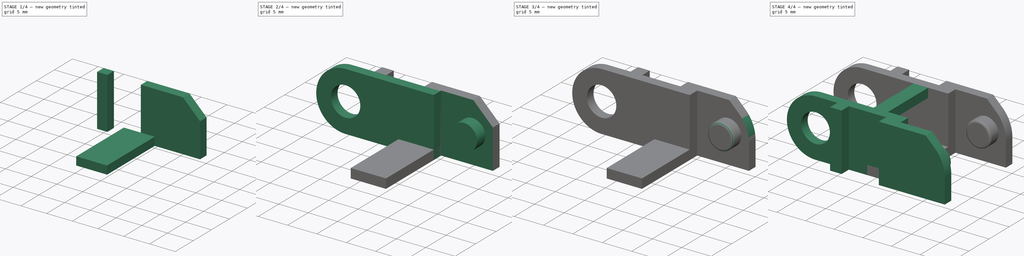
[diagram: build sequence overview — one tinted view per stage of 4, left to right]
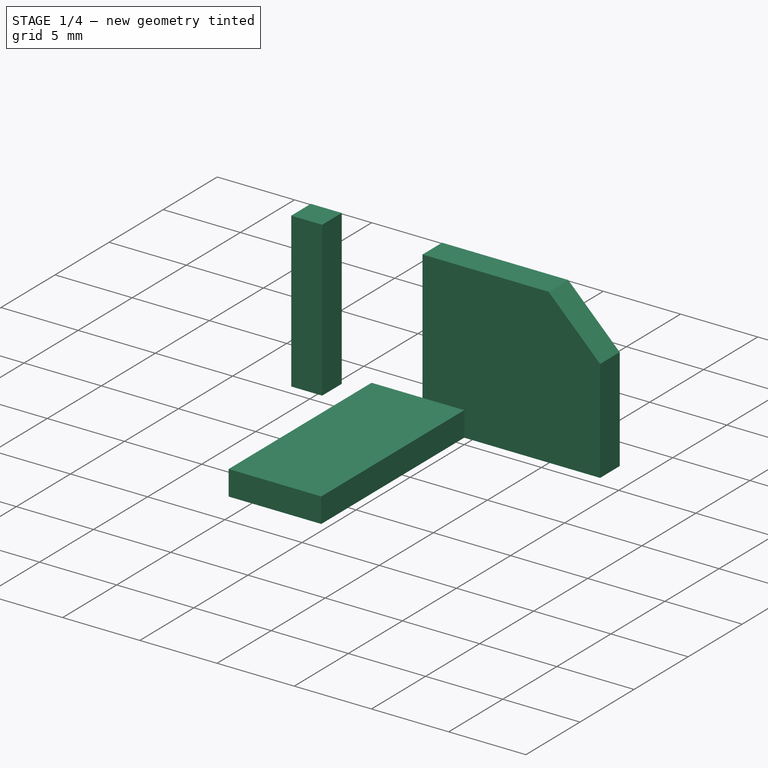
[diagram: stage 1 of 4 — iso view after this stage's code; geometry added in this stage tinted green]
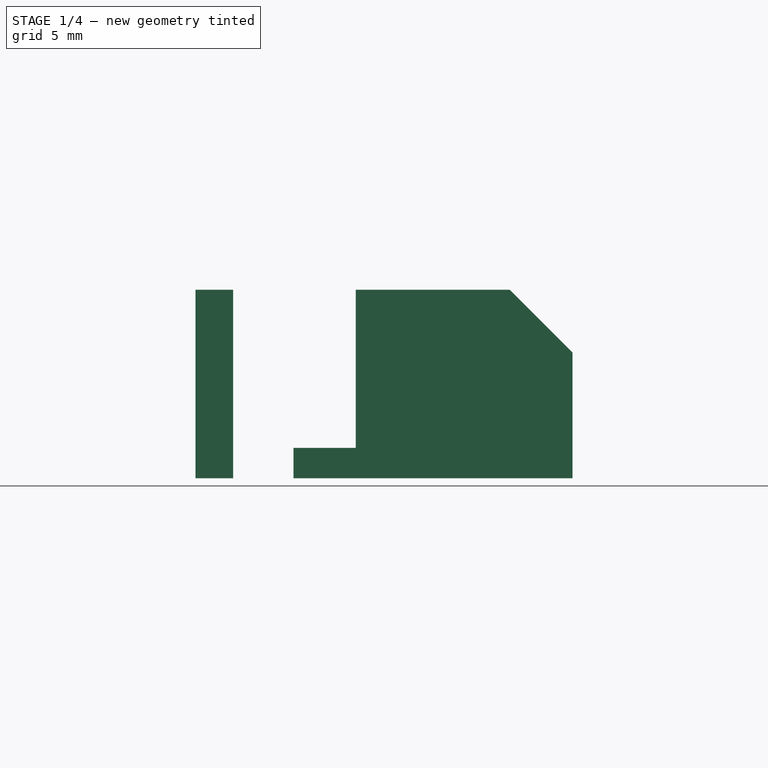
[diagram: stage 1 of 4 — front view after this stage's code; geometry added in this stage tinted green]
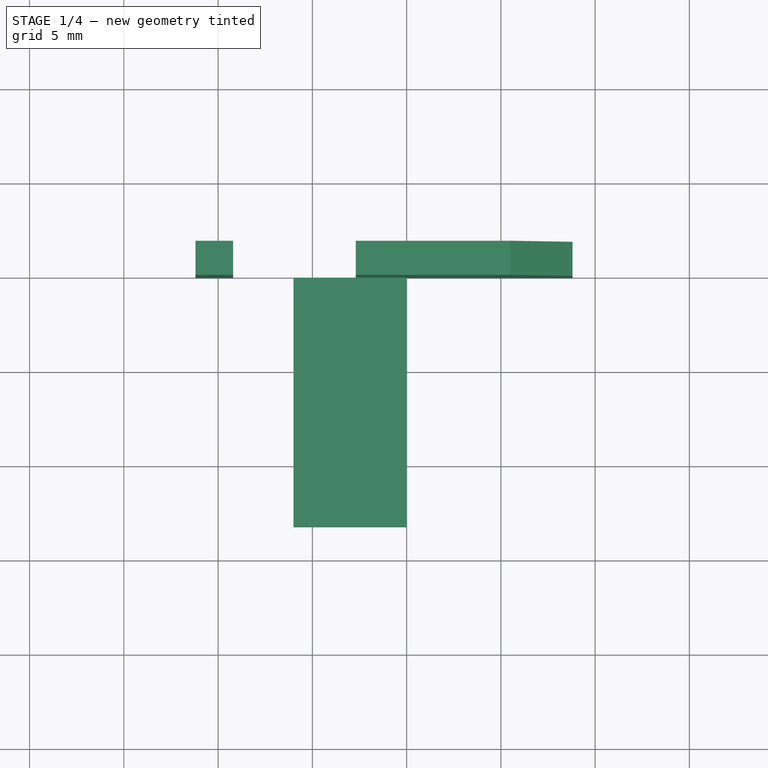
[diagram: stage 1 of 4 — top view after this stage's code; geometry added in this stage tinted green]
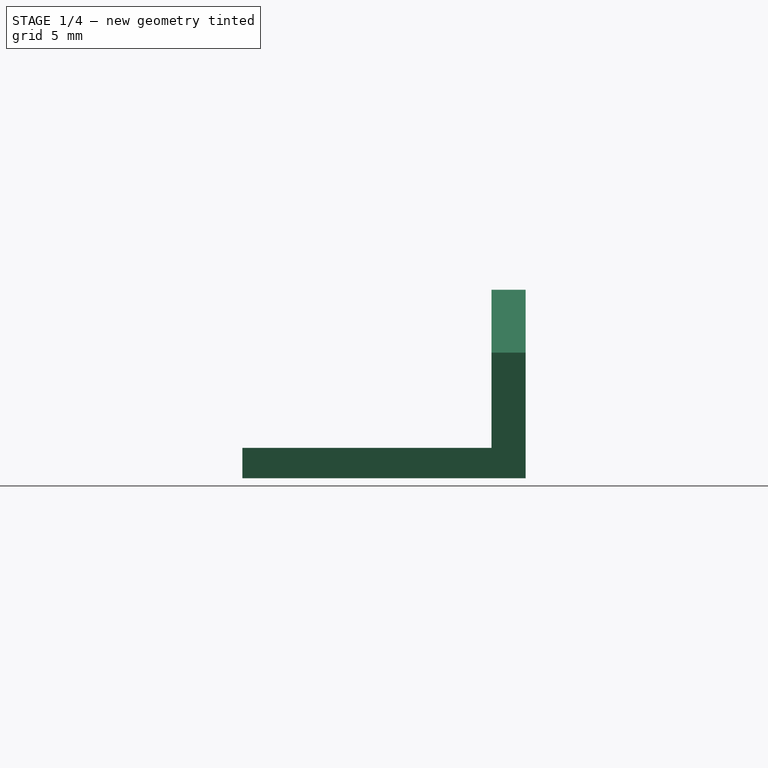
[diagram: stage 1 of 4 — right view after this stage's code; geometry added in this stage tinted green]
FCSTD DOCUMENT  (FreeCAD 0.17R13528 (Git))
Label: CableChain2
License: All rights reserved
LicenseURL: http://en.wikipedia.org/wiki/All_rights_reserved
objects: Sketcher::SketchObject×7, PartDesign::Pad×6, Part::MultiFuse×2, PartDesign::Fillet×2, Spreadsheet::Sheet×1, App::DocumentObjectGroup×1, PartDesign::Pocket×1, Part::FeaturePython×1
note: 26 computed .brp shape members not serialized (recipe doc carries the construction recipe); baked Part::Feature solids carry a one-line shape summary decoded from their .brp

FEATURE [Sketcher::SketchObject] Sketch008  label="hingeblock"
  MapMode = 5
  Placement = pos=(8.8,0,0) rot=(1,0,0;1.5708rad)
  expr: Placement.Base.x = Params.Height / 2 + Params.HingeRadius + Params.HingeBlockDistance + Params.Tolerance * 2
  sketch-geometry (4):
    g0: LineSegment StartX=0 StartY=0 StartZ=0 EndX=2 EndY=0 EndZ=0
    g1: LineSegment StartX=2 StartY=0 StartZ=0 EndX=2 EndY=10 EndZ=0
    g2: LineSegment StartX=2 StartY=10 StartZ=0 EndX=0 EndY=10 EndZ=0
    g3: LineSegment StartX=0 StartY=10 StartZ=0 EndX=0 EndY=0 EndZ=0
  constraints (11):
    c: Coincident(g0,g1)
    c: Coincident(g1,g2)
    c: Coincident(g2,g3)
    c: Coincident(g3,g0)
    c: Horizontal(g0)
    c: Horizontal(g2)
    c: Vertical(g1)
    c: Vertical(g3)
    c: DistanceY(g3,g3) = 10
    c: DistanceX(g2,g2) = 2
    c: Coincident(g0,g-1)
FEATURE [PartDesign::Pad] Pad007  label="HingeBlock"
  Length = 1.81
  Length2 = 100
  Placement = pos=(8.8,0,0) rot=(1,0,0;1.5708rad)
  Profile = -> Sketch008
  Reversed = true
  Type = 0
  expr: Length = Params.HingeThickness + Params.Separation
FEATURE [Sketcher::SketchObject] Sketch009  label="groovebase"
  MapMode = 5
  Placement = pos=(0,0,0) rot=(1,0,0;1.5708rad)
  expr: Constraints[14] = Params.Height / Params.AngleDivider
  expr: Constraints[6] = Params.Height
  expr: Constraints[8] = Params.HingeOverlap + Params.Height / 2 + Params.HingeRadius + Params.HingeBlockDistance + Params.Tolerance
  expr: Constraints[13] = Params.Height / Params.AngleDivider
  expr: Constraints[7] = Params.Length - Params.HingeOverlap + Params.Tolerance
  sketch-geometry (5):
    g0: LineSegment StartX=17.3 StartY=0 StartZ=0 EndX=28.8 EndY=0 EndZ=0
    g1: LineSegment StartX=28.8 StartY=0 StartZ=0 EndX=28.8 EndY=6.66667 EndZ=0
    g2: LineSegment StartX=17.3 StartY=10 StartZ=0 EndX=17.3 EndY=0 EndZ=0
    g3: LineSegment StartX=17.3 StartY=10 StartZ=0 EndX=25.4667 EndY=10 EndZ=0
    g4: LineSegment StartX=25.4667 StartY=10 StartZ=0 EndX=28.8 EndY=6.66667 EndZ=0
  constraints (15):
    c: Coincident(g0,g1)
    c: Coincident(g2,g0)
    c: Horizontal(g0)
    c: Vertical(g1)
    c: Vertical(g2)
    c: PointOnObject(g0,g-1)
    c: DistanceY(g2,g2) = 10
    c: DistanceX(g-1,g0) = 17.3
    c: DistanceX(g0,g0) = 11.5
    c: Coincident(g3,g2)
    c: Horizontal(g3)
    c: Coincident(g4,g3)
    c: Coincident(g4,g1)
    c: DistanceX(g3,g1) = 3.33333
    c: DistanceY(g1,g3) = 3.33333
FEATURE [PartDesign::Pad] Pad008  label="GrooveBase"
  Length = 1.81
  Length2 = 100
  Placement = pos=(0,0,0) rot=(1,0,0;1.5708rad)
  Profile = -> Sketch009
  Reversed = true
  Type = 0
  expr: Length = Params.HingeThickness + Params.Separation
FEATURE [Sketcher::SketchObject] Sketch010  label="lowerbridge001"
  MapMode = 5
  Placement = pos=(14,0,0) rot=(0,0,1;0rad)
  expr: Placement.Base.x = Params.Length - Params.LowerBridgeWidth
  expr: Constraints[10] = Params.LowerBridgeWidth
  expr: Constraints[9] = Params.ChannelWidth + Params.HingeThickness * 2
  sketch-geometry (4):
    g0: LineSegment StartX=0 StartY=0 StartZ=0 EndX=6 EndY=0 EndZ=0
    g1: LineSegment StartX=6 StartY=0 StartZ=0 EndX=6 EndY=-13.22 EndZ=0
    g2: LineSegment StartX=6 StartY=-13.22 StartZ=0 EndX=0 EndY=-13.22 EndZ=0
    g3: LineSegment StartX=0 StartY=-13.22 StartZ=0 EndX=0 EndY=0 EndZ=0
  constraints (11):
    c: Coincident(g0,g1)
    c: Coincident(g1,g2)
    c: Coincident(g2,g3)
    c: Coincident(g3,g0)
    c: Horizontal(g0)
    c: Horizontal(g2)
    c: Vertical(g1)
    c: Vertical(g3)
    c: Coincident(g0,g-1)
    c: DistanceY(g3,g3) = 13.22
    c: DistanceX(g0,g0) = 6
FEATURE [PartDesign::Pad] Pad009  label="LowerBridge"
  Length = 1.61
  Length2 = 100
  Placement = pos=(14,0,0) rot=(0,0,1;0rad)
  Profile = -> Sketch010
  Type = 0
  expr: Length = Params.HingeThickness
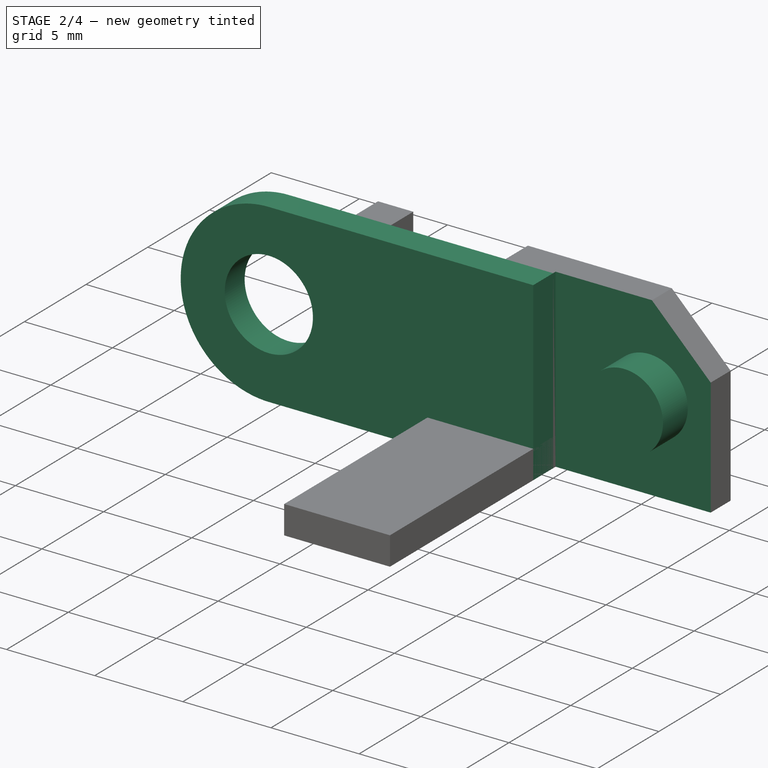
[diagram: stage 2 of 4 — iso view after this stage's code; geometry added in this stage tinted green]
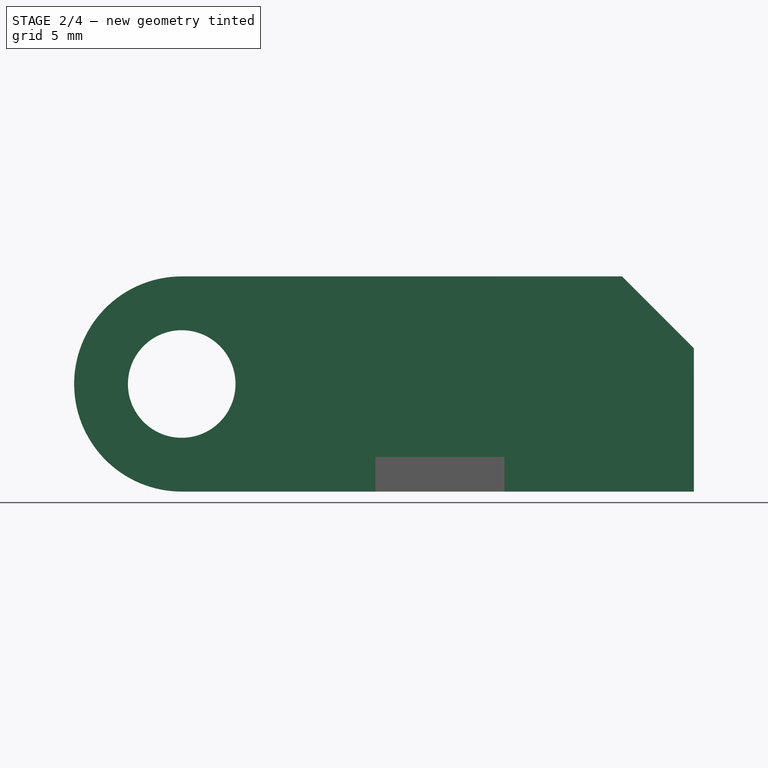
[diagram: stage 2 of 4 — front view after this stage's code; geometry added in this stage tinted green]
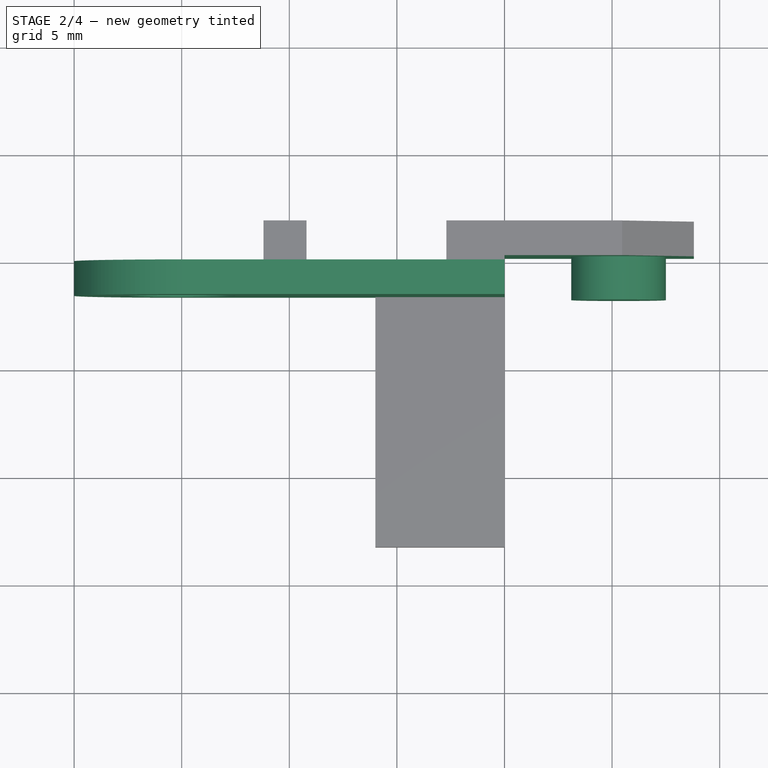
[diagram: stage 2 of 4 — top view after this stage's code; geometry added in this stage tinted green]
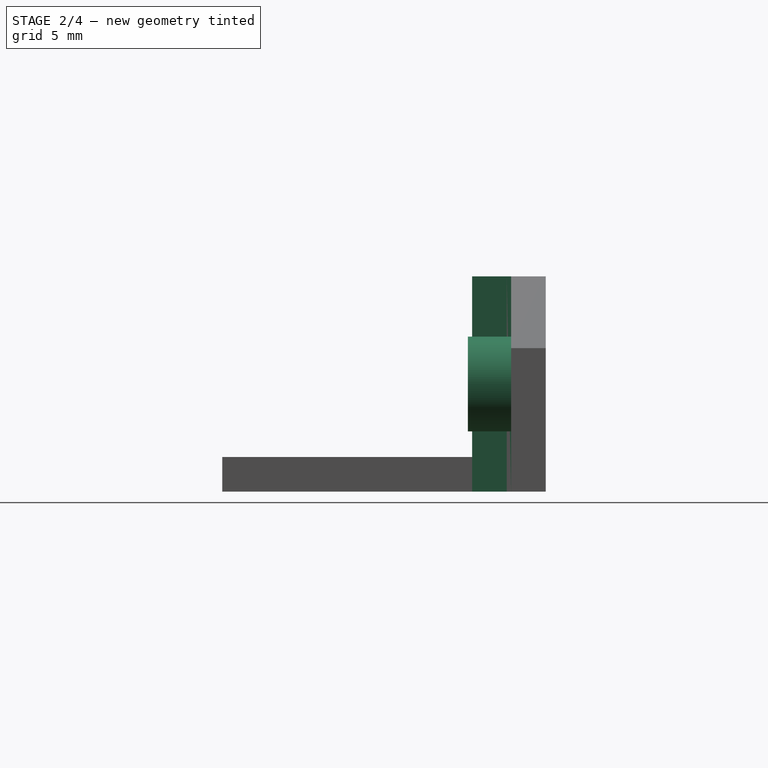
[diagram: stage 2 of 4 — right view after this stage's code; geometry added in this stage tinted green]
FEATURE [Sketcher::SketchObject] Sketch  label="mainbody"
  MapMode = 5
  Placement = pos=(0,0,0) rot=(1,0,0;1.5708rad)
  expr: Constraints[17] = Params.HingeRadius + Spreadsheet.Tolerance
  expr: Constraints[14] = Params.Height
  expr: Constraints[8] = Params.Length
  sketch-geometry (6):
    g0: LineSegment StartX=20 StartY=1.3e-11 StartZ=0 EndX=20 EndY=10 EndZ=0
    g1: LineSegment StartX=20 StartY=10 StartZ=0 EndX=5.00001 EndY=10 EndZ=0
    g2: LineSegment StartX=20 StartY=1.3e-11 StartZ=0 EndX=5.00001 EndY=1.3e-11 EndZ=0
    g3: ArcOfCircle CenterX=5 CenterY=5 CenterZ=0 NormalX=0 NormalY=0 NormalZ=1 AngleXU=0 Radius=5 StartAngle=1.57079 EndAngle=4.71239
    g4: LineSegment [constr] StartX=20 StartY=5 StartZ=0 EndX=0 EndY=5 EndZ=0
    g5: Circle CenterX=5 CenterY=5 CenterZ=0 NormalX=0 NormalY=0 NormalZ=1 AngleXU=0 Radius=2.5
  constraints (19):
    c: Vertical(g0)
    c: Horizontal(g1)
    c: Coincident(g2,g0)
    c: Horizontal(g2)
    c: Coincident(g3,g1)
    c: Coincident(g3,g2)
    c: PointOnObject(g4,g3)
    c: Horizontal(g4)
    c: DistanceX(g4,g0) = 20
    c: PointOnObject(g4,g-2)
    c: PointOnObject(g3,g4)
    c: PointOnObject(g2,g-1)
    c: Tangent(g1,g3)
    c: Tangent(g3,g2)
    c: DistanceY(g2,g1) = 10
    c: PointOnObject(g4,g0)
    c: Coincident(g5,g3)
    c: Radius(g5) = 2.5
    c: Coincident(g1,g0)
FEATURE [PartDesign::Pad] Pad  label="MainBody_1"
  Length = 1.61
  Length2 = 100
  Placement = pos=(0,0,0) rot=(1,0,0;1.5708rad)
  Profile = -> Sketch
  Type = 0
  expr: Length = Params.HingeThickness
FEATURE [App::DocumentObjectGroup] Group  label="Data"
  Group = -> [Spreadsheet]
FEATURE [Sketcher::SketchObject] Sketch007  label="groove"
  MapMode = 5
  Placement = pos=(25.3,0.2,5) rot=(1,0,0;1.5708rad)
  expr: Placement.Base.z = Params.Height / 2
  expr: Placement.Base.x = Params.Length + Params.Height / 2 + Params.Tolerance
  expr: Placement.Base.y = Params.Separation
  sketch-geometry (1):
    g0: Circle CenterX=0 CenterY=0 CenterZ=0 NormalX=0 NormalY=0 NormalZ=1 AngleXU=0 Radius=2.2
  constraints (2):
    c: Radius(g0) = 2.2
    c: Coincident(g0,g-1)
FEATURE [PartDesign::Pad] Pad006  label="Groove"
  Length = 2.01
  Length2 = 100
  Placement = pos=(25.3,0.2,5) rot=(1,0,0;1.5708rad)
  Profile = -> Sketch007
  Type = 0
  expr: Length = Params.HingeThickness + Params.Separation * 2
FEATURE [Sketcher::SketchObject] Sketch006  label="groovebasepocket"
  MapMode = 5
  Placement = pos=(0,0,0) rot=(1,0,0;1.5708rad)
  Support = -> [Pad008]
  expr: Constraints[14] = Params.Height / Params.AngleDivider
  expr: Constraints[6] = Params.Height
  expr: Constraints[8] = Params.Height / 2 + Params.HingeRadius + Params.HingeBlockDistance + Params.Tolerance * 2
  expr: Constraints[13] = Params.Height / Params.AngleDivider
  expr: Constraints[7] = Params.Length
  sketch-geometry (5):
    g0: LineSegment StartX=20 StartY=0 StartZ=0 EndX=28.8 EndY=0 EndZ=0
    g1: LineSegment StartX=28.8 StartY=0 StartZ=0 EndX=28.8 EndY=6.66667 EndZ=0
    g2: LineSegment StartX=20 StartY=10 StartZ=0 EndX=20 EndY=0 EndZ=0
    g3: LineSegment StartX=20 StartY=10 StartZ=0 EndX=25.4667 EndY=10 EndZ=0
    g4: LineSegment StartX=25.4667 StartY=10 StartZ=0 EndX=28.8 EndY=6.66667 EndZ=0
  constraints (15):
    c: Coincident(g0,g1)
    c: Coincident(g2,g0)
    c: Horizontal(g0)
    c: Vertical(g1)
    c: Vertical(g2)
    c: PointOnObject(g0,g-1)
    c: DistanceY(g2,g2) = 10
    c: DistanceX(g-1,g0) = 20
    c: DistanceX(g0,g0) = 8.8
    c: Coincident(g3,g2)
    c: Horizontal(g3)
    c: Coincident(g4,g3)
    c: Coincident(g4,g1)
    c: DistanceX(g3,g1) = 3.33333
    c: DistanceY(g1,g3) = 3.33333
FEATURE [PartDesign::Pocket] Pocket  label="GrooveBasePocket"
  Length = 0.2
  Length2 = 100
  Placement = pos=(0,0,0) rot=(1,0,0;1.5708rad)
  Profile = -> Sketch006
  Type = 0
  expr: Length = Params.Separation
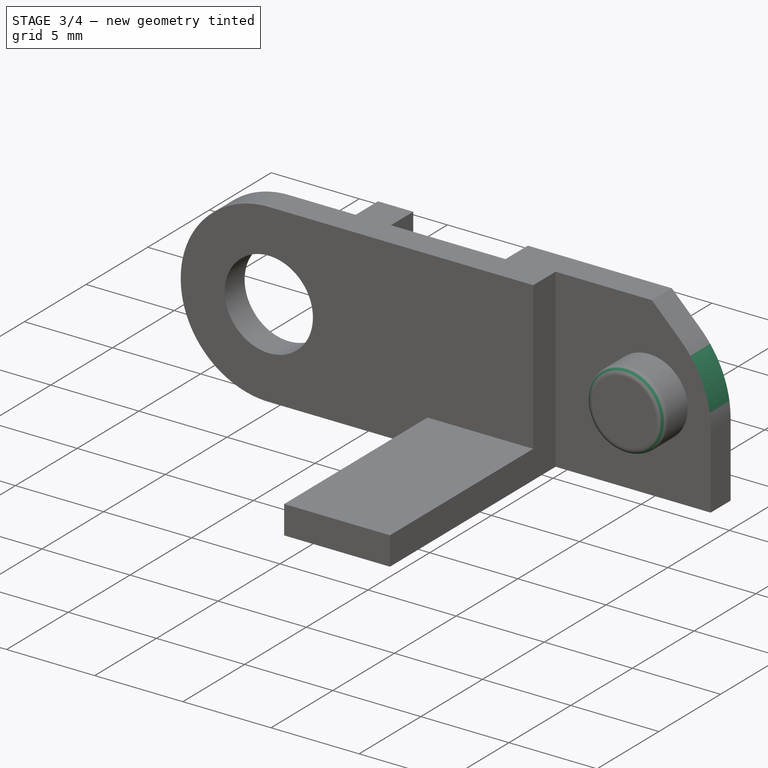
[diagram: stage 3 of 4 — iso view after this stage's code; geometry added in this stage tinted green]
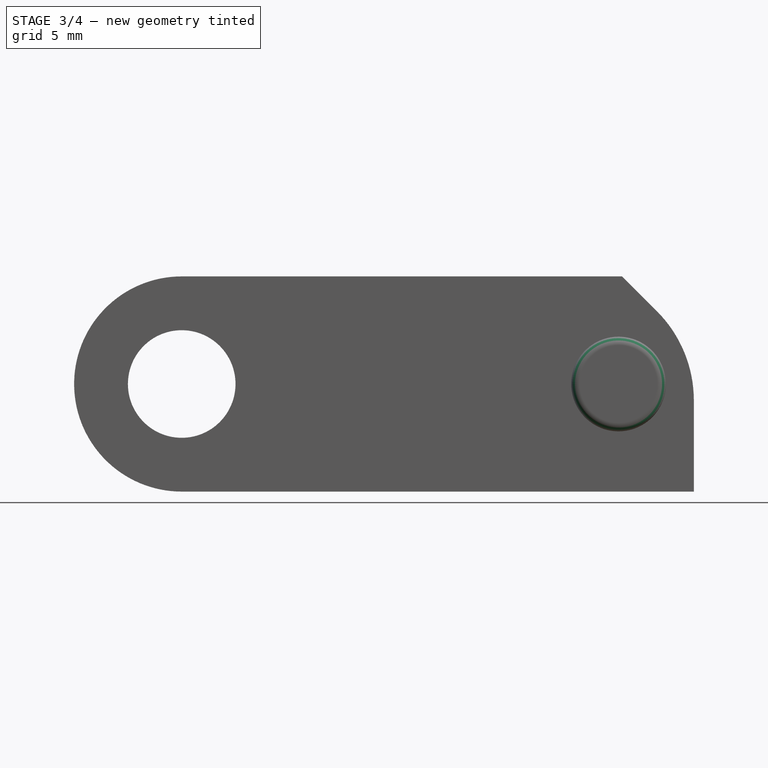
[diagram: stage 3 of 4 — front view after this stage's code; geometry added in this stage tinted green]
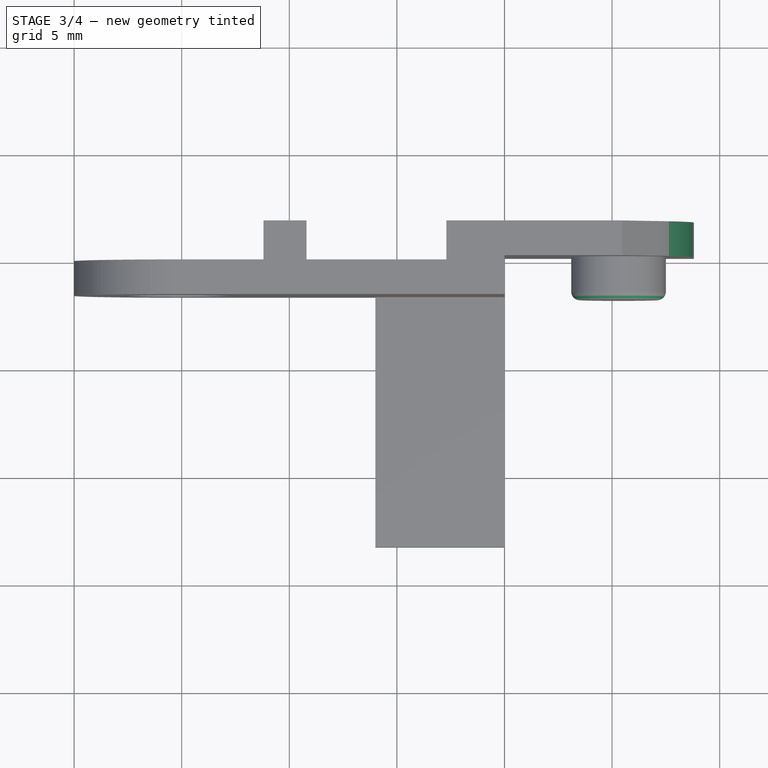
[diagram: stage 3 of 4 — top view after this stage's code; geometry added in this stage tinted green]
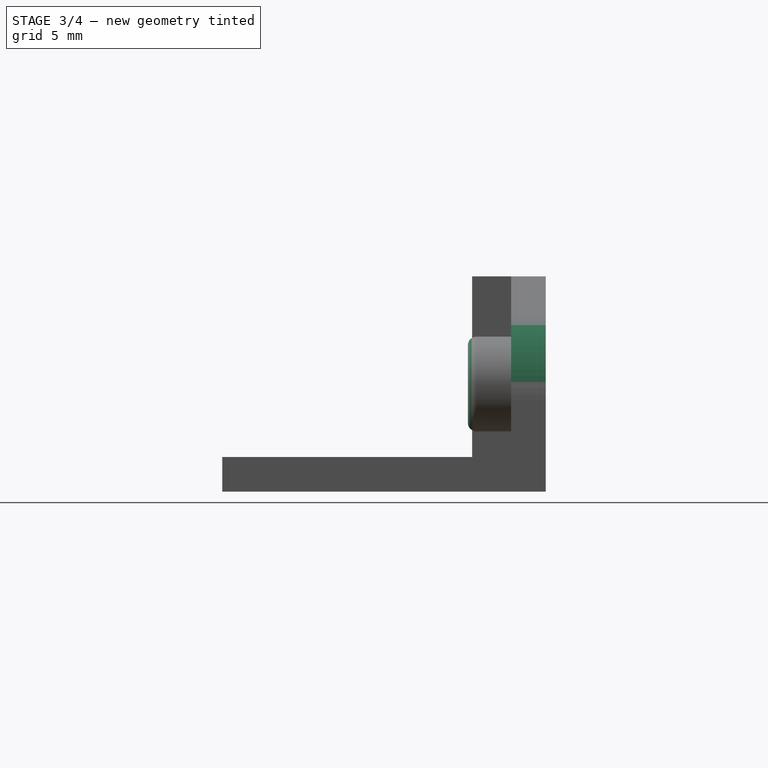
[diagram: stage 3 of 4 — right view after this stage's code; geometry added in this stage tinted green]
FEATURE [Part::MultiFuse] Fusion
  Shapes = -> [Pad,Pad007,Pocket,Pad006]
FEATURE [PartDesign::Fillet] Fillet  label="GrooveBaseFilet"
  Base = -> Fusion [Edge45]
  Radius = 5.88235
  expr: Radius = Params.Height / 1.7
FEATURE [PartDesign::Fillet] Fillet001  label="GrooveFilet"
  Base = -> Fillet [Edge25]
  Radius = 0.4
  expr: Radius = Params.GrooveFiletRadius
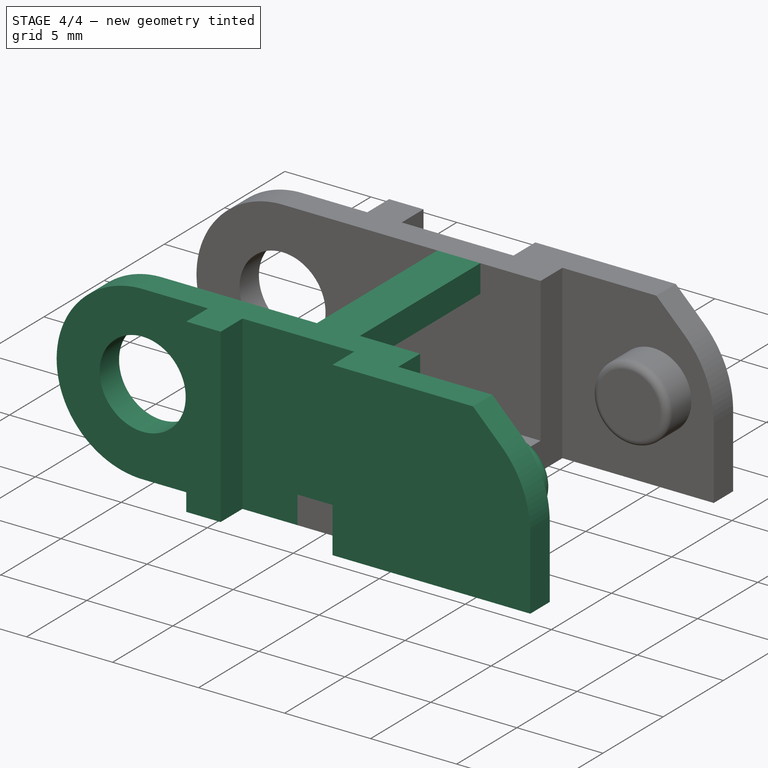
[diagram: stage 4 of 4 — iso view after this stage's code; geometry added in this stage tinted green]
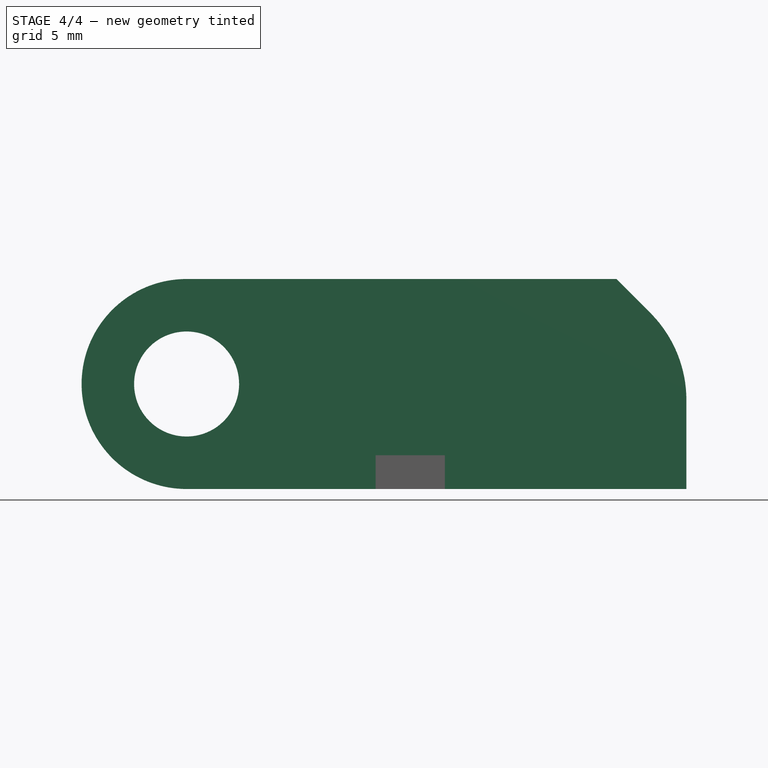
[diagram: stage 4 of 4 — front view after this stage's code; geometry added in this stage tinted green]
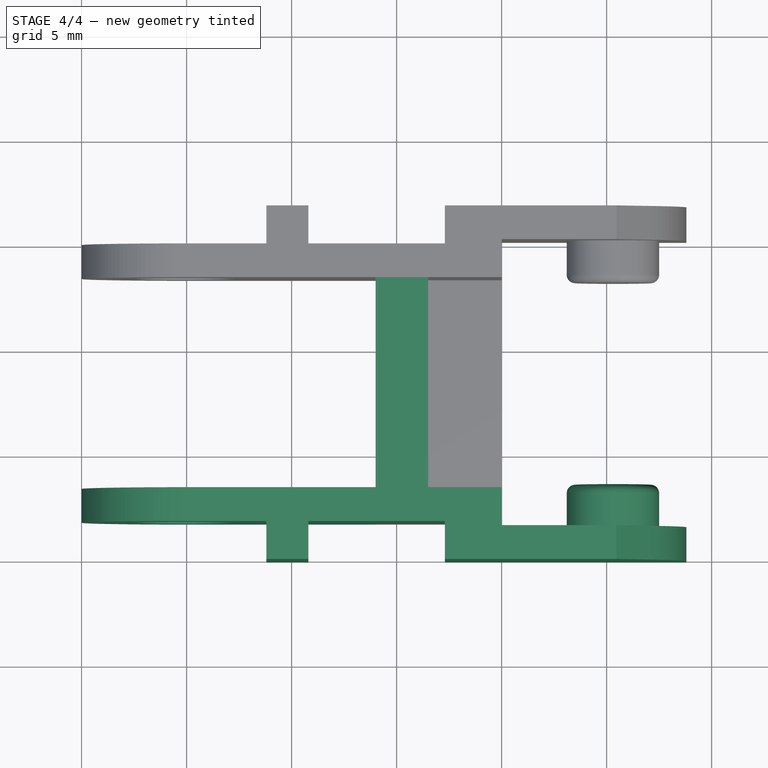
[diagram: stage 4 of 4 — top view after this stage's code; geometry added in this stage tinted green]
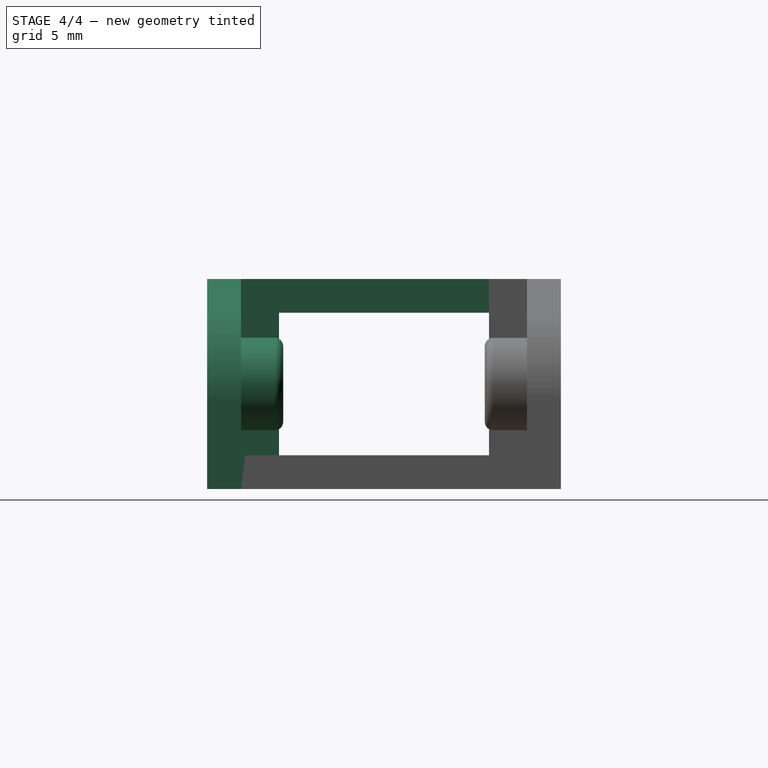
[diagram: stage 4 of 4 — right view after this stage's code; geometry added in this stage tinted green]
FEATURE [Spreadsheet::Sheet] Spreadsheet  label="Params"
  cells = B2=Length; C2(Length)=20; B3=Height; C3(Height)=10; B4=ChannelWidth; C4(ChannelWidth)=10; B5=HingeThickness; C5(HingeThickness)=1.6100000000000001; B6=HingeRadius; C6(HingeRadius)=2.2000000000000002; B7=GrooveFiletRadius; C7(GrooveFiletRadius)=0.40000000000000002; B8=HingeOverlap; C8(HingeOverlap)=3; B9=Tolerance; C9(Tolerance)=0.29999999999999999; B10=Separation; C10(Separation)=0.20000000000000001; B11=AngleDivider; C11(AngleDivider)=3; B12=HingeBlockDistance; C12(HingeBlockDistance)=1; B13=LowerBridgeWidth; C13(LowerBridgeWidth)=6; B14=UpperBridgeWidth; C14(UpperBridgeWidth)=3
FEATURE [Sketcher::SketchObject] Sketch002  label="upperbridge"
  MapMode = 5
  Placement = pos=(14,0,8.39) rot=(0,0,1;0rad)
  expr: Placement.Base.z = Params.Height - Params.HingeThickness
  expr: Placement.Base.x = Params.Length - Params.LowerBridgeWidth
  expr: Constraints[9] = Params.ChannelWidth + Params.HingeThickness * 2
  sketch-geometry (4):
    g0: LineSegment StartX=0 StartY=0 StartZ=0 EndX=2.5 EndY=0 EndZ=0
    g1: LineSegment StartX=2.5 StartY=0 StartZ=0 EndX=2.5 EndY=-13.22 EndZ=0
    g2: LineSegment StartX=2.5 StartY=-13.22 StartZ=0 EndX=0 EndY=-13.22 EndZ=0
    g3: LineSegment StartX=0 StartY=-13.22 StartZ=0 EndX=0 EndY=0 EndZ=0
  constraints (11):
    c: Coincident(g0,g1)
    c: Coincident(g1,g2)
    c: Coincident(g2,g3)
    c: Coincident(g3,g0)
    c: Horizontal(g0)
    c: Horizontal(g2)
    c: Vertical(g1)
    c: Vertical(g3)
    c: DistanceX(g0,g0) = 2.5
    c: DistanceY(g3,g3) = 13.22
    c: Coincident(g0,g-1)
FEATURE [PartDesign::Pad] Pad002  label="UpperBridge"
  Length = 1.61
  Length2 = 100
  Placement = pos=(14,0,8.39) rot=(0,0,1;0rad)
  Profile = -> Sketch002
  Type = 0
  expr: Length = Params.HingeThickness
FEATURE [Part::FeaturePython] Clone  label="Clone of GrooveFilet"  # Draft clone (typed FeaturePython)
  Objects = -> [Fillet001]
  Placement = pos=(0,-13.22,0) rot=(0,0,1;0rad)
  Scale = (1,-1,1)
  expr: Placement.Base.y = -Params.ChannelWidth - Params.HingeThickness * 2
FEATURE [Part::MultiFuse] Fusion001  label="FullChainLink"
  Shapes = -> [Clone,Fillet001,Pad009,Pad002]
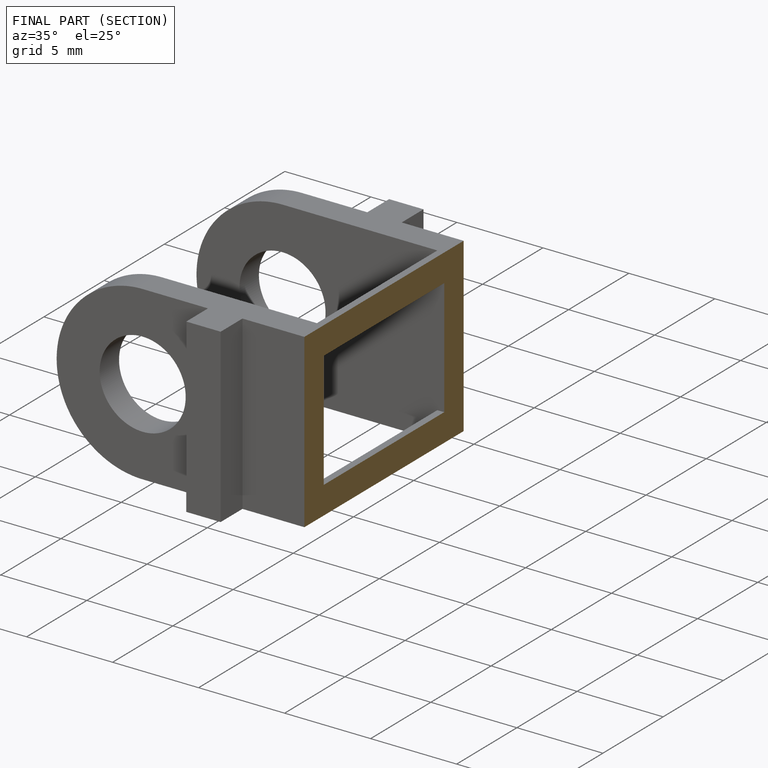
[diagram: finished part — half-section view (interior)]
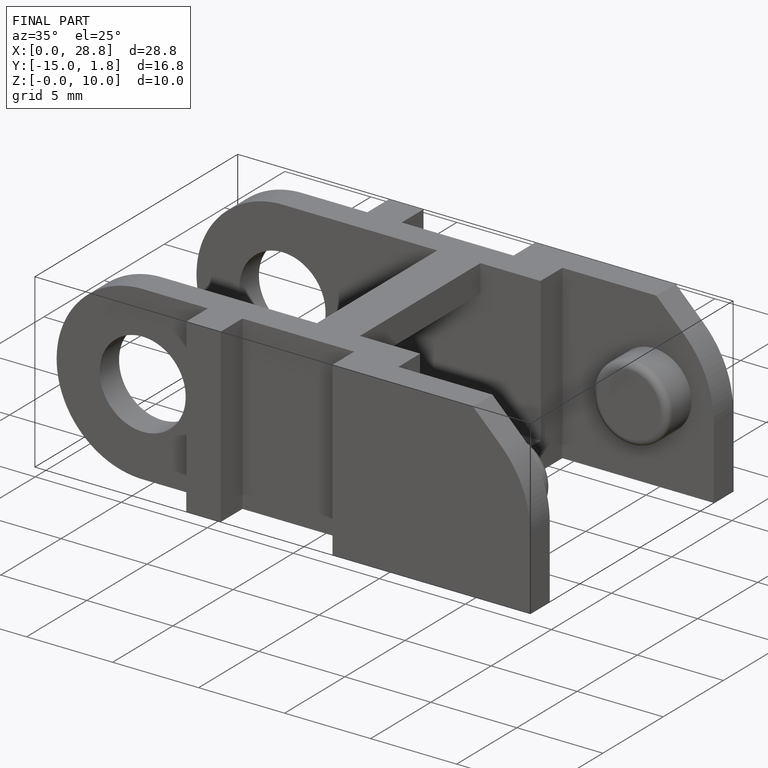
[diagram: finished part — iso view with bounding-box wireframe]
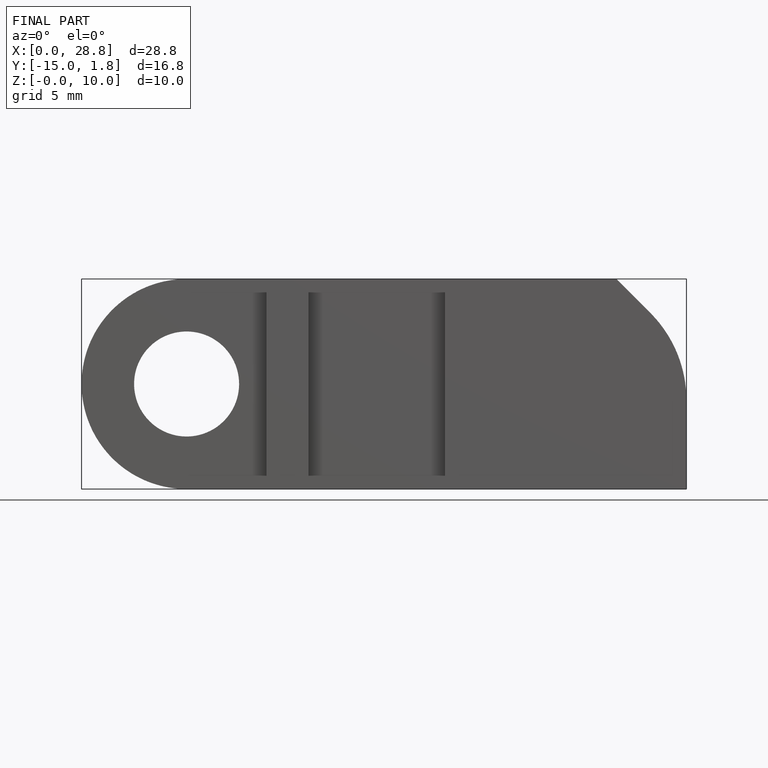
[diagram: finished part — front view with bounding-box wireframe]
